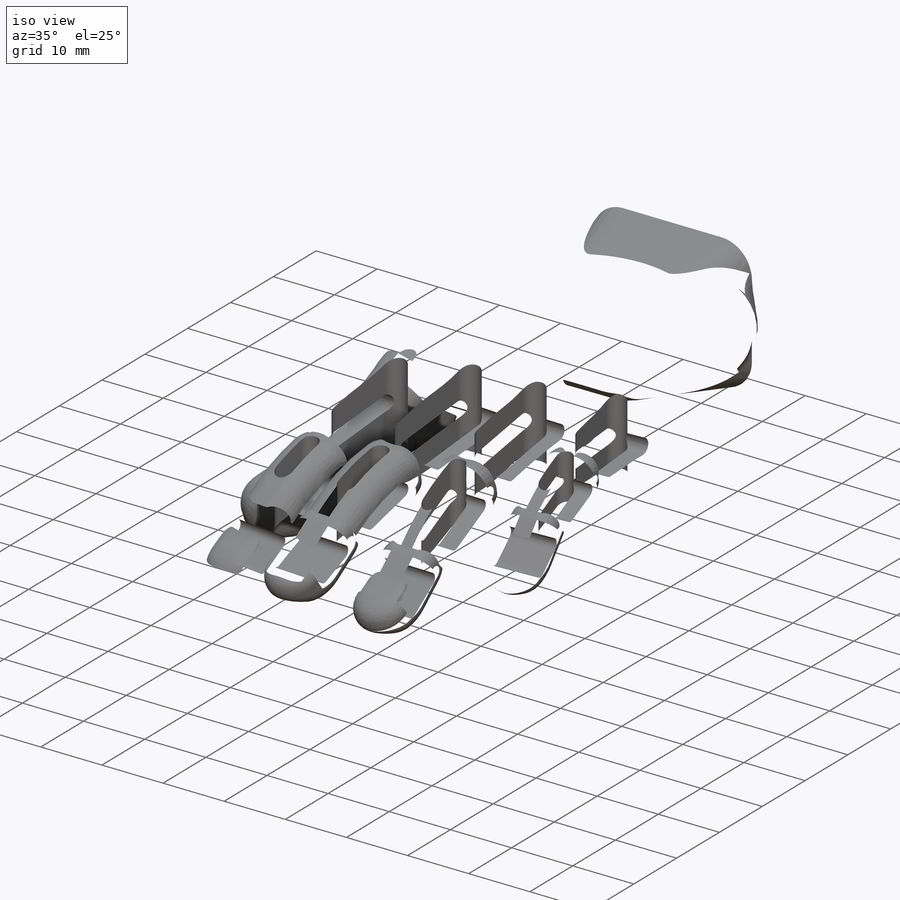
[diagram: iso view]
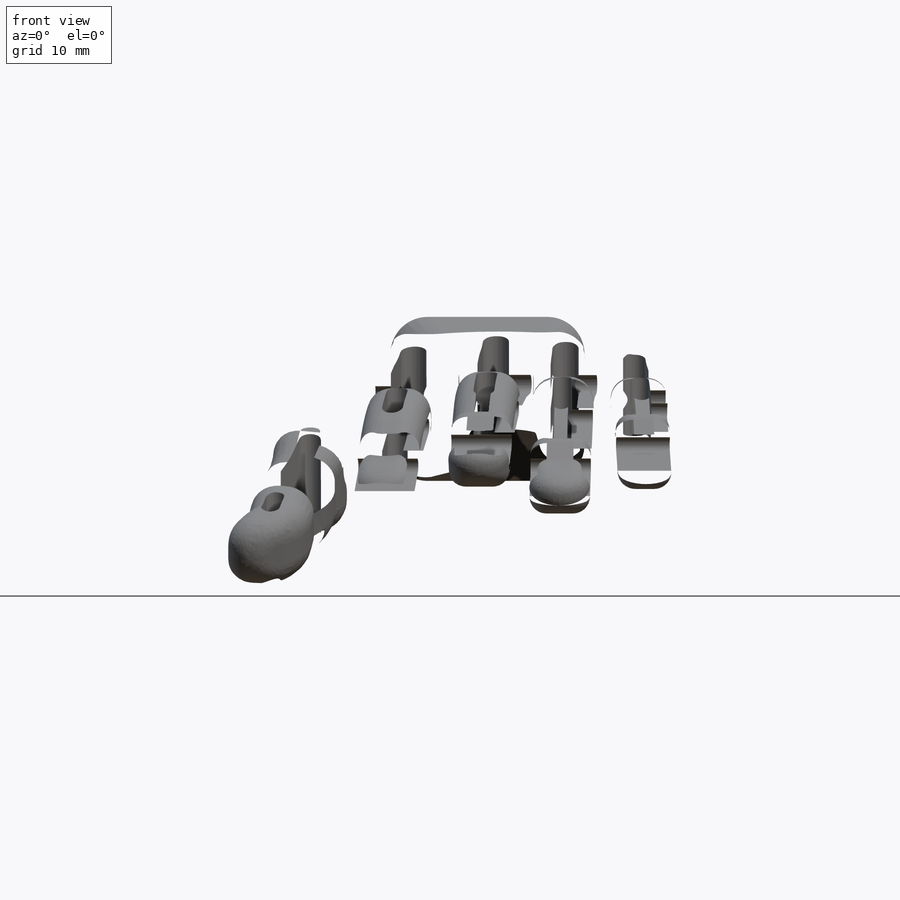
[diagram: front view]
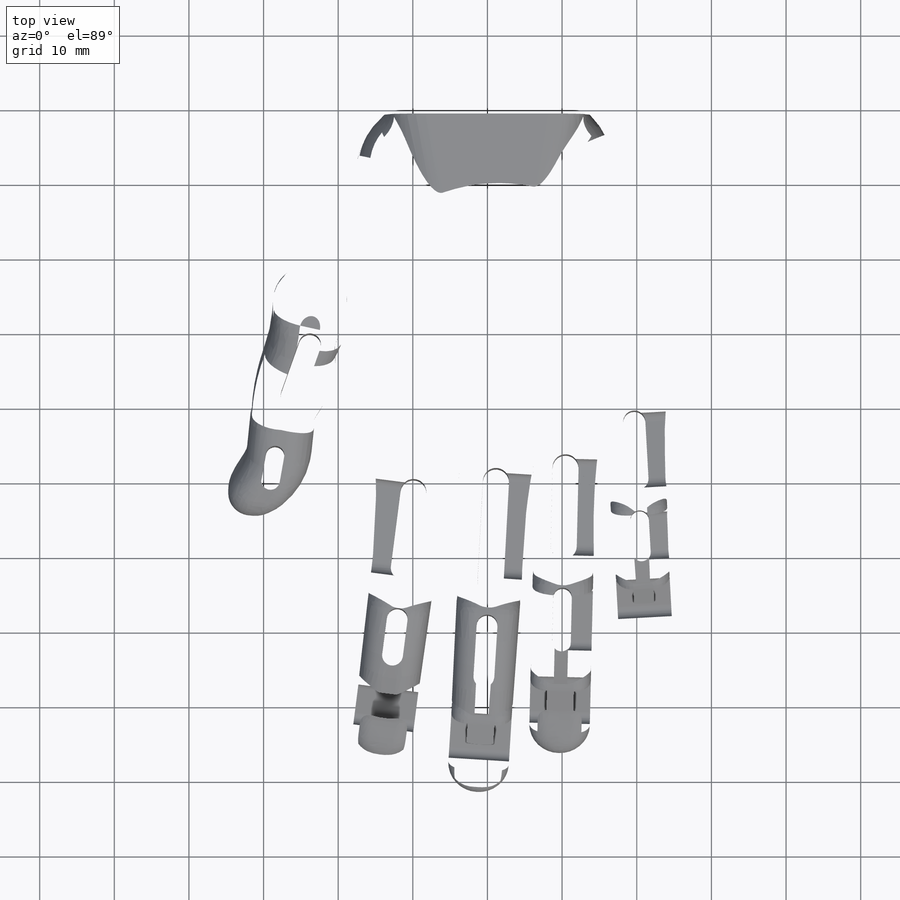
[diagram: top view]
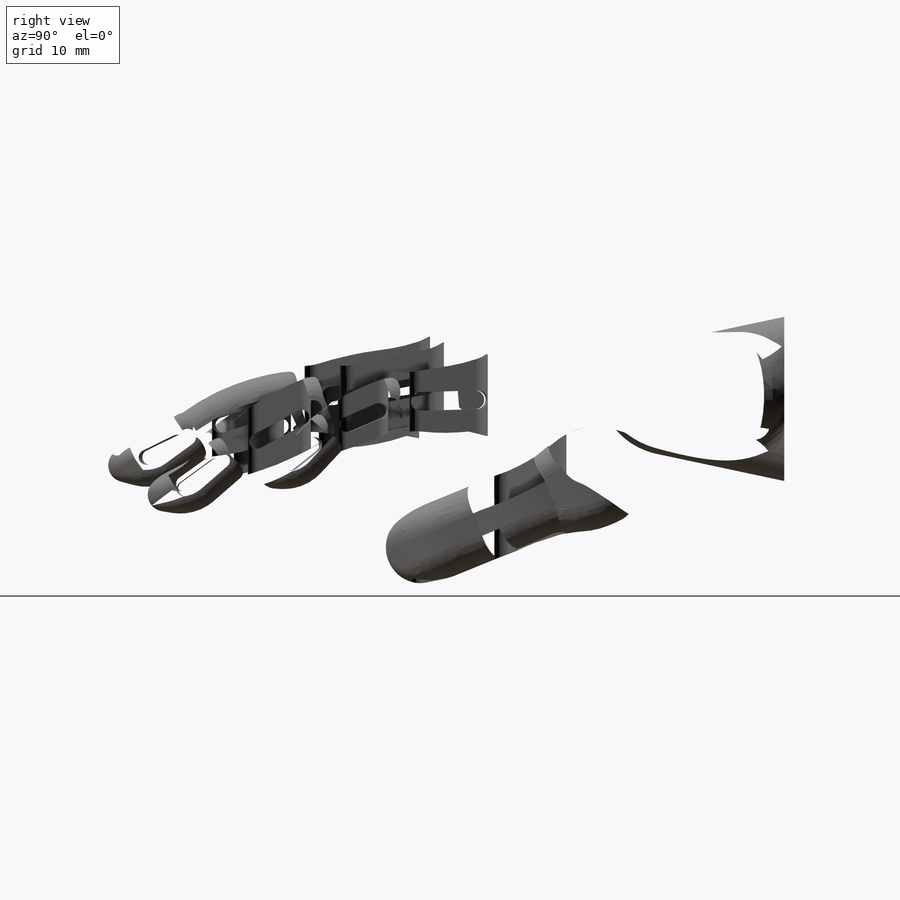
[diagram: right view]
SOLIDWORKS PART (.sldprt)
format: sldprt  version: not decoded by parser v0  size: 65,206,784 bytes
history: native  units: mm
features: sketch x12, fillet x8, plane x7, extrude x4, cut_extrude x3, mirror x3, boolean_combine x2, material x1, chamfer x1, revolve x1, move_body x1, delete_body x1 + 1 further entry (+17 scaffold rows collapsed; 9 parser-record rows omitted)
feature tree (71):
  scaffold x17  (default folders/planes/origin — collapsed)
  material  "Polyamide"
  plane  "Plan de face"
  plane  "Plan de dessus"
  plane  "Plan de droite"
  sketch  "hole_positions"  dims[c1.D3=2.2mm c1.D1=5.0mm c1.D2=12.0mm c2.D3=5.0mm]
  sketch  "tip_arm_dimensions"  dims[D3=5.0mm D1=26.0mm D2=22.0mm D4=3.0mm]
  parser-record x9  (decoder bookkeeping rows leaked as tree rows — omitted from the tree; the rows remain in map.json)
  sketch  "inner_part"  dims[c1.D2=2.0mm c1.D3=2.0mm c1.D1=0.15mm c2.D2=2.0mm]
  extrude  "Boss-Extrude2"  Depth=9mm
  sketch  "jonction_part"
  extrude  "Boss-Extrude5"  Depth=1mm
  plane  "Plane1"
  fillet  "Fillet1"  Radius=1mm
  sketch  "Sketch7"  dims[D1=3.9mm]
  fillet  "Fillet9"  Radius=1mm
  sketch  "Sketch12"  dims[c1.D1=~6.574386mm c1.D2=~6.438364mm c2.D1=0.5mm c2.D2=0.0mm c2.D3=0.5mm]
  extrude  "Boss-Extrude7"  Depth=2mm
  fillet  "Fillet10"  Radius=0.5mm
  sketch  "Sketch13"  dims[D2=~2.309401mm D1=0.05mm]
  cut_extrude  "Cut-Extrude4"  Depth=1.6mm
  fillet  "Fillet8"  Radius=0.1mm
  mirror  "Mirror4"
  mirror  "Mirror5"
  sketch  "Sketch8"
  cut_extrude  "Cut-Extrude2"  [1 undecoded]
  fillet  "Fillet4"  Radius=0.7mm
  chamfer  "Chamfer1"  Distance=0.5mm Angle=45deg
  sketch  "Sketch9"  dims[D1=45.0mm D2=4.0mm]
  revolve  "Revolve1"  Angle=360deg
  sketch  "Sketch10"
  extrude  "Boss-Extrude6"  [1 undecoded]
  sketch  "Sketch11"
  cut_extrude  "Cut-Extrude3"  [1 undecoded]
  fillet  "Fillet5"  Radius=1mm
  fillet  "Fillet6"  Radius=5mm
  fillet  "Fillet7"  Radius=5mm
  plane  "Front Plane-fake_human_like_hand"
  plane  "Top Plane-fake_human_like_hand"
  plane  "Right Plane-fake_human_like_hand"
  sketch  "Sketch1-fake_human_like_hand"  dims[c1.D1=~26.064532mm c1.D2=25.0mm c2.D1=27.0mm]
  "fake_human_like_hand"
  move_body  "Body-Move/Copy2"
  boolean_combine  "Combine1"
  mirror  "Mirror3"
  delete_body  "Body-Delete1"
  boolean_combine  "Combine2"
decode coverage: 22 of 36 modeling features carry decoded parameters; 1 rows unclassified (native names shown)
note: ~ marks probable driven/reference dimensions
note: 3 parameter values undecoded
summary: no parameter record found for 3 features
note: suppression state not decoded; provenance and decode notes live in map.json
